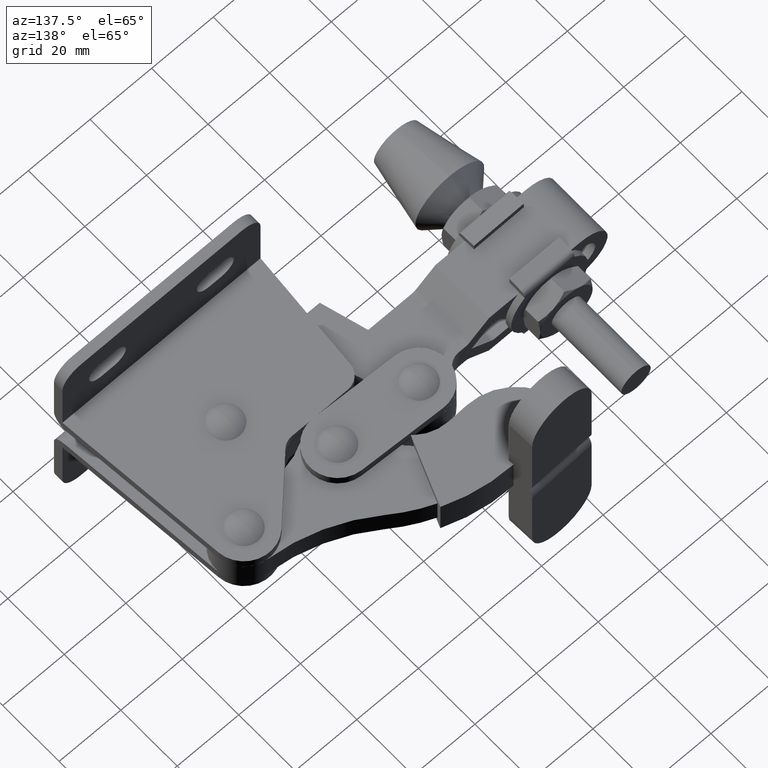
[diagram: clean part render]
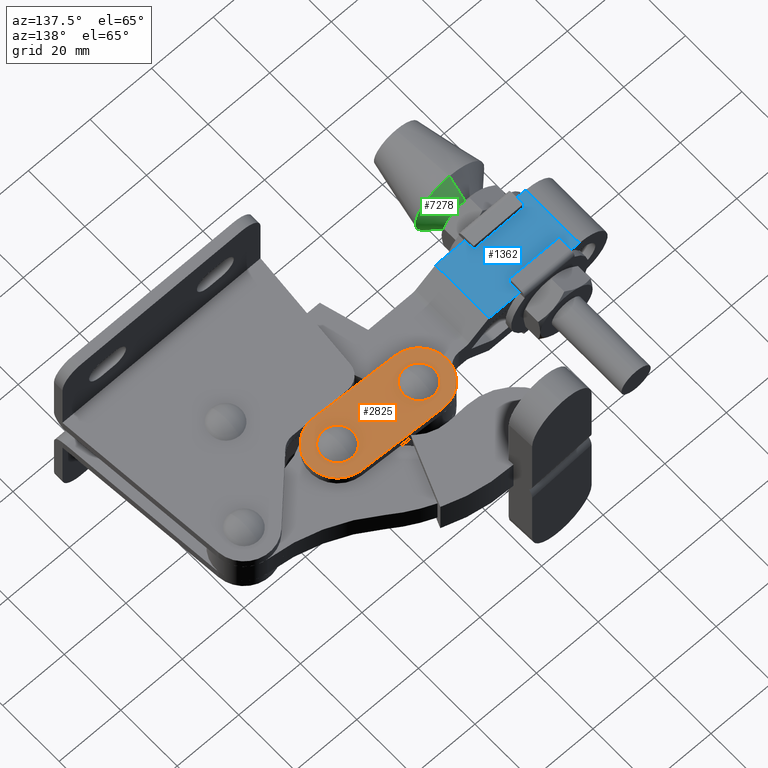
[diagram: same view with three faces highlighted in distinct colors, each labeled with its STEP entity id]
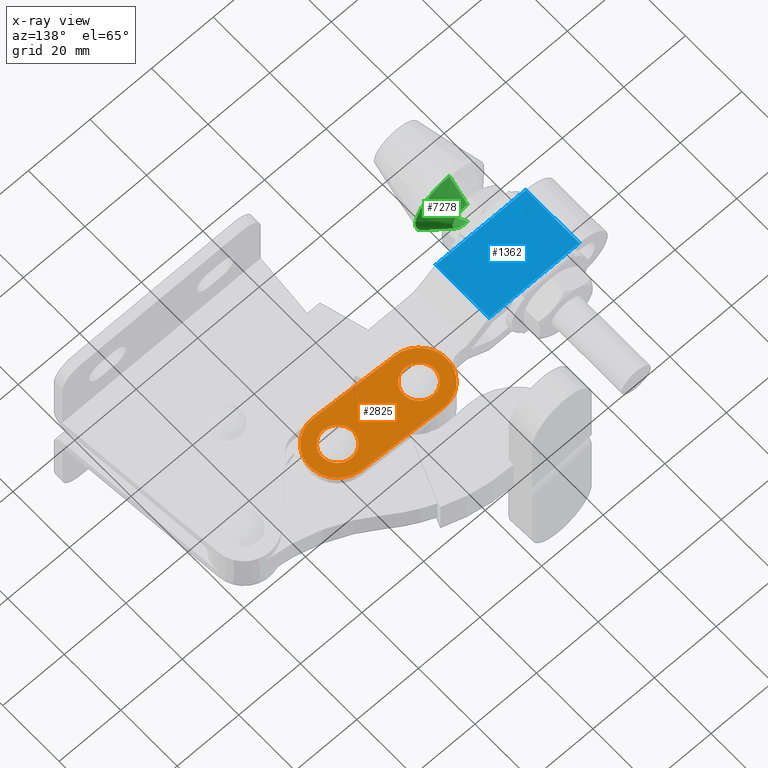
[diagram: x-ray of the same camera — body ghosted, the three highlighted faces saturated]
A machine part, auxiliary view with three faces highlighted in distinct colors.
The next image is the same camera in x-ray (body ghosted, the three faces saturated) — at least one of them is partly hidden behind the body in this view.
Their STEP definitions:

[orange] entity #2825 — the highlighted planar face has unit normal (0, 0, -1).
#169 = DIRECTION ( 'NONE',  ( -1.000000000000000000, 0.0000000000000000000, 0.0000000000000000000 ) ) ;
#311 = EDGE_CURVE ( 'NONE', #1109, #12103, #4352, .T. ) ;
#343 = FACE_BOUND ( 'NONE', #6686, .T. ) ;
#630 = EDGE_CURVE ( 'NONE', #11021, #5490, #1571, .T. ) ;
#844 = CARTESIAN_POINT ( 'NONE',  ( -31.38186293465651400, -1.067088914024708800, 3.000000000000000000 ) ) ;
#1109 = VERTEX_POINT ( 'NONE', #1926 ) ;
#1175 = DIRECTION ( 'NONE',  ( -0.0000000000000000000, -0.0000000000000000000, 1.000000000000000000 ) ) ;
#1364 = DIRECTION ( 'NONE',  ( -0.0000000000000000000, -0.0000000000000000000, 1.000000000000000000 ) ) ;
#1571 = LINE ( 'NONE', #2408, #11194 ) ;
#1696 = CARTESIAN_POINT ( 'NONE',  ( -56.86953488110078300, -6.865852915445034700E-015, 2.999999999999998200 ) ) ;
#1775 = DIRECTION ( 'NONE',  ( -0.9991247332984820600, 0.04183022007158512800, 0.0000000000000000000 ) ) ;
#1926 = CARTESIAN_POINT ( 'NONE',  ( -31.38186293465643900, 3.932911085973869200, 2.999999999999998700 ) ) ;
#2400 = CARTESIAN_POINT ( 'NONE',  ( -64.04783167791941900, 90.87345329217039600, 3.000000000000000000 ) ) ;
#2408 = CARTESIAN_POINT ( 'NONE',  ( -31.00539095401224500, 7.925033685661699000, 3.000000000000000000 ) ) ;
#2507 = VECTOR ( 'NONE', #7595, 1000.000000000000000 ) ;
#2618 = DIRECTION ( 'NONE',  ( -1.000000000000000000, 0.0000000000000000000, 0.0000000000000000000 ) ) ;
#2788 = CARTESIAN_POINT ( 'NONE',  ( -56.86953488110078300, 5.000000000000000900, 2.999999999999998700 ) ) ;
#2825 = ADVANCED_FACE ( 'NONE', ( #9959, #343, #5297 ), #11701, .F. ) ;
#3297 = EDGE_CURVE ( 'NONE', #5490, #5879, #6425, .T. ) ;
#3309 = EDGE_CURVE ( 'NONE', #12103, #1109, #6132, .T. ) ;
#3345 = DIRECTION ( 'NONE',  ( 0.0000000000000000000, 0.0000000000000000000, -1.000000000000000000 ) ) ;
#3598 = EDGE_LOOP ( 'NONE', ( #5985, #3641, #4854, #5308, #11183 ) ) ;
#3641 = ORIENTED_EDGE ( 'NONE', *, *, #630, .T. ) ;
#3857 = AXIS2_PLACEMENT_3D ( 'NONE', #4144, #10656, #5082 ) ;
#3886 = CARTESIAN_POINT ( 'NONE',  ( -56.86953488110086100, 1.430713186811871700E-012, 3.000000000000000000 ) ) ;
#3911 = CARTESIAN_POINT ( 'NONE',  ( -56.86953488110078300, -5.000000000000015100, 2.999999999999998700 ) ) ;
#4144 = CARTESIAN_POINT ( 'NONE',  ( -56.86953488110086100, 1.430713186811871700E-012, 3.000000000000000000 ) ) ;
#4205 = EDGE_LOOP ( 'NONE', ( #5538, #5399 ) ) ;
#4352 = CIRCLE ( 'NONE', #10865, 5.000000000000011500 ) ;
#4381 = EDGE_CURVE ( 'NONE', #5879, #11215, #8246, .T. ) ;
#4535 = CARTESIAN_POINT ( 'NONE',  ( -31.38186293465643900, -6.067088914026145500, 2.999999999999998700 ) ) ;
#4816 = DIRECTION ( 'NONE',  ( -0.9991247332984819500, 0.04183022007158512800, 0.0000000000000000000 ) ) ;
#4854 = ORIENTED_EDGE ( 'NONE', *, *, #3297, .T. ) ;
#4974 = ORIENTED_EDGE ( 'NONE', *, *, #10314, .F. ) ;
#5033 = VERTEX_POINT ( 'NONE', #3911 ) ;
#5060 = ORIENTED_EDGE ( 'NONE', *, *, #10144, .F. ) ;
#5082 = DIRECTION ( 'NONE',  ( -0.9991247332984819500, 0.04183022007158601600, 0.0000000000000000000 ) ) ;
#5297 = FACE_OUTER_BOUND ( 'NONE', #3598, .T. ) ;
#5308 = ORIENTED_EDGE ( 'NONE', *, *, #4381, .T. ) ;
#5399 = ORIENTED_EDGE ( 'NONE', *, *, #3309, .F. ) ;
#5490 = VERTEX_POINT ( 'NONE', #5643 ) ;
#5538 = ORIENTED_EDGE ( 'NONE', *, *, #311, .F. ) ;
#5643 = CARTESIAN_POINT ( 'NONE',  ( -56.49306290045659300, 8.992122599687839100, 3.000000000000000000 ) ) ;
#5743 = DIRECTION ( 'NONE',  ( -0.0000000000000000000, -0.0000000000000000000, 1.000000000000000000 ) ) ;
#5879 = VERTEX_POINT ( 'NONE', #6281 ) ;
#5923 = EDGE_CURVE ( 'NONE', #6416, #11021, #6596, .T. ) ;
#5985 = ORIENTED_EDGE ( 'NONE', *, *, #5923, .T. ) ;
#6132 = CIRCLE ( 'NONE', #7559, 5.000000000000011500 ) ;
#6281 = CARTESIAN_POINT ( 'NONE',  ( -65.86165748078701700, 0.3764719806456890400, 3.000000000000000000 ) ) ;
#6416 = VERTEX_POINT ( 'NONE', #10857 ) ;
#6425 = CIRCLE ( 'NONE', #3857, 8.999999999999815300 ) ;
#6596 = CIRCLE ( 'NONE', #7338, 9.000000000000071100 ) ;
#6686 = EDGE_LOOP ( 'NONE', ( #5060, #4974 ) ) ;
#6742 = CARTESIAN_POINT ( 'NONE',  ( -31.38186293465643900, -1.067088914026138100, 2.999999999999998200 ) ) ;
#6931 = CARTESIAN_POINT ( 'NONE',  ( -31.38186293465643900, -1.067088914026138100, 2.999999999999998200 ) ) ;
#7173 = EDGE_CURVE ( 'NONE', #11215, #6416, #10233, .T. ) ;
#7326 = DIRECTION ( 'NONE',  ( -0.0000000000000000000, -0.0000000000000000000, 1.000000000000000000 ) ) ;
#7338 = AXIS2_PLACEMENT_3D ( 'NONE', #844, #7326, #1775 ) ;
#7559 = AXIS2_PLACEMENT_3D ( 'NONE', #6931, #1364, #7845 ) ;
#7586 = CIRCLE ( 'NONE', #11219, 5.000000000000011500 ) ;
#7595 = DIRECTION ( 'NONE',  ( 0.9991247332984819500, -0.04183022007158512800, 0.0000000000000000000 ) ) ;
#7665 = DIRECTION ( 'NONE',  ( -1.000000000000000000, 0.0000000000000000000, 0.0000000000000000000 ) ) ;
#7845 = DIRECTION ( 'NONE',  ( -1.000000000000000000, 0.0000000000000000000, 0.0000000000000000000 ) ) ;
#7946 = CARTESIAN_POINT ( 'NONE',  ( -31.00539095401224500, 7.925033685661699000, 3.000000000000000000 ) ) ;
#8017 = CIRCLE ( 'NONE', #10350, 5.000000000000011500 ) ;
#8170 = DIRECTION ( 'NONE',  ( -0.0000000000000000000, -0.0000000000000000000, 1.000000000000000000 ) ) ;
#8246 = CIRCLE ( 'NONE', #10466, 8.999999999999815300 ) ;
#9531 = AXIS2_PLACEMENT_3D ( 'NONE', #2400, #3345, #9854 ) ;
#9666 = VERTEX_POINT ( 'NONE', #2788 ) ;
#9854 = DIRECTION ( 'NONE',  ( -0.9991247332984819500, 0.04183022007158512800, 0.0000000000000000000 ) ) ;
#9959 = FACE_BOUND ( 'NONE', #4205, .T. ) ;
#10144 = EDGE_CURVE ( 'NONE', #9666, #5033, #7586, .T. ) ;
#10233 = LINE ( 'NONE', #11333, #2507 ) ;
#10314 = EDGE_CURVE ( 'NONE', #5033, #9666, #8017, .T. ) ;
#10350 = AXIS2_PLACEMENT_3D ( 'NONE', #11337, #5743, #169 ) ;
#10393 = DIRECTION ( 'NONE',  ( -0.0000000000000000000, -0.0000000000000000000, 1.000000000000000000 ) ) ;
#10466 = AXIS2_PLACEMENT_3D ( 'NONE', #3886, #10393, #4816 ) ;
#10599 = DIRECTION ( 'NONE',  ( -0.9991247332984819500, 0.04183022007158512800, 0.0000000000000000000 ) ) ;
#10656 = DIRECTION ( 'NONE',  ( -0.0000000000000000000, -0.0000000000000000000, 1.000000000000000000 ) ) ;
#10857 = CARTESIAN_POINT ( 'NONE',  ( -31.75833491530078600, -10.05921151371111800, 3.000000000000000000 ) ) ;
#10865 = AXIS2_PLACEMENT_3D ( 'NONE', #6742, #1175, #7665 ) ;
#11021 = VERTEX_POINT ( 'NONE', #7946 ) ;
#11183 = ORIENTED_EDGE ( 'NONE', *, *, #7173, .T. ) ;
#11194 = VECTOR ( 'NONE', #10599, 1000.000000000000000 ) ;
#11215 = VERTEX_POINT ( 'NONE', #11991 ) ;
#11219 = AXIS2_PLACEMENT_3D ( 'NONE', #1696, #8170, #2618 ) ;
#11333 = CARTESIAN_POINT ( 'NONE',  ( -57.24600686174513700, -8.992122599684977400, 3.000000000000000000 ) ) ;
#11337 = CARTESIAN_POINT ( 'NONE',  ( -56.86953488110078300, -6.865852915445034700E-015, 2.999999999999998200 ) ) ;
#11701 = PLANE ( 'NONE',  #9531 ) ;
#11991 = CARTESIAN_POINT ( 'NONE',  ( -57.24600686174513700, -8.992122599684977400, 3.000000000000000000 ) ) ;
#12103 = VERTEX_POINT ( 'NONE', #4535 ) ;

[blue] entity #1362 — the highlighted planar face has unit normal (0, 0, 1).
#229 = LINE ( 'NONE', #3174, #9561 ) ;
#525 = CARTESIAN_POINT ( 'NONE',  ( -118.7560132984885400, -19.36000000000024500, 5.149999999999973700 ) ) ;
#681 = ORIENTED_EDGE ( 'NONE', *, *, #7944, .F. ) ;
#1362 = ADVANCED_FACE ( 'NONE', ( #9990 ), #10700, .T. ) ;
#1463 = DIRECTION ( 'NONE',  ( -1.000000000000000000, -0.0000000000000000000, -0.0000000000000000000 ) ) ;
#1657 = ORIENTED_EDGE ( 'NONE', *, *, #10817, .F. ) ;
#2041 = VECTOR ( 'NONE', #8295, 1000.000000000000000 ) ;
#2133 = CARTESIAN_POINT ( 'NONE',  ( -118.7250726582063300, -0.3599999999997944800, 5.149999999999973700 ) ) ;
#2136 = VERTEX_POINT ( 'NONE', #4922 ) ;
#2299 = ORIENTED_EDGE ( 'NONE', *, *, #5154, .T. ) ;
#2591 = DIRECTION ( 'NONE',  ( 0.0000000000000000000, 0.0000000000000000000, 1.000000000000000000 ) ) ;
#2806 = VECTOR ( 'NONE', #1463, 1000.000000000000000 ) ;
#2813 = EDGE_CURVE ( 'NONE', #2136, #9504, #8031, .T. ) ;
#2885 = CARTESIAN_POINT ( 'NONE',  ( -79.93000000000027700, -0.3599999999997944800, 5.149999999999973700 ) ) ;
#3062 = DIRECTION ( 'NONE',  ( 1.000000000000000000, 0.0000000000000000000, 0.0000000000000000000 ) ) ;
#3174 = CARTESIAN_POINT ( 'NONE',  ( -109.2849326175768000, -19.36000000000024500, 5.149999999999973700 ) ) ;
#3374 = VECTOR ( 'NONE', #3062, 1000.000000000000000 ) ;
#3666 = LINE ( 'NONE', #2133, #3374 ) ;
#4922 = CARTESIAN_POINT ( 'NONE',  ( -79.93000000000019200, -19.36000000000024500, 5.149999999999973700 ) ) ;
#5154 = EDGE_CURVE ( 'NONE', #9905, #9504, #229, .T. ) ;
#6236 = ORIENTED_EDGE ( 'NONE', *, *, #2813, .F. ) ;
#6810 = DIRECTION ( 'NONE',  ( -0.0000000000000000000, -1.000000000000000000, -0.0000000000000000000 ) ) ;
#6977 = LINE ( 'NONE', #10167, #2041 ) ;
#7358 = EDGE_LOOP ( 'NONE', ( #6236, #681, #1657, #2299 ) ) ;
#7944 = EDGE_CURVE ( 'NONE', #8747, #2136, #6977, .T. ) ;
#8031 = LINE ( 'NONE', #525, #2806 ) ;
#8295 = DIRECTION ( 'NONE',  ( -0.0000000000000000000, -1.000000000000000000, -0.0000000000000000000 ) ) ;
#8326 = AXIS2_PLACEMENT_3D ( 'NONE', #9141, #2591, #9013 ) ;
#8747 = VERTEX_POINT ( 'NONE', #2885 ) ;
#8802 = CARTESIAN_POINT ( 'NONE',  ( -109.2849326175768000, -0.3599999999997910400, 5.149999999999973700 ) ) ;
#8985 = CARTESIAN_POINT ( 'NONE',  ( -109.2849326175768000, -19.36000000000024500, 5.149999999999973700 ) ) ;
#9013 = DIRECTION ( 'NONE',  ( 1.000000000000000000, 0.0000000000000000000, 0.0000000000000000000 ) ) ;
#9141 = CARTESIAN_POINT ( 'NONE',  ( -109.2849326175768000, -19.36000000000024500, 5.149999999999973700 ) ) ;
#9504 = VERTEX_POINT ( 'NONE', #8985 ) ;
#9561 = VECTOR ( 'NONE', #6810, 1000.000000000000000 ) ;
#9905 = VERTEX_POINT ( 'NONE', #8802 ) ;
#9990 = FACE_OUTER_BOUND ( 'NONE', #7358, .T. ) ;
#10167 = CARTESIAN_POINT ( 'NONE',  ( -79.93000000000013500, -19.36000000000024500, 5.149999999999973700 ) ) ;
#10700 = PLANE ( 'NONE',  #8326 ) ;
#10817 = EDGE_CURVE ( 'NONE', #9905, #8747, #3666, .T. ) ;

[green] entity #7278 — the highlighted conical surface has half-angle 44.723 deg.
#108 = EDGE_CURVE ( 'NONE', #1604, #5689, #9440, .T. ) ;
#290 = DIRECTION ( 'NONE',  ( 1.224606353822377000E-016, -1.000000000000000000, 3.963202713684358100E-033 ) ) ;
#448 = DIRECTION ( 'NONE',  ( -1.000000000000000000, 0.0000000000000000000, 0.0000000000000000000 ) ) ;
#1604 = VERTEX_POINT ( 'NONE', #5938 ) ;
#1763 = DIRECTION ( 'NONE',  ( 0.007955792333100647500, -0.7105144651125617800, 0.7036376199679511600 ) ) ;
#2743 = EDGE_CURVE ( 'NONE', #11786, #1604, #3995, .T. ) ;
#2850 = ORIENTED_EDGE ( 'NONE', *, *, #2743, .T. ) ;
#3073 = CARTESIAN_POINT ( 'NONE',  ( -97.73519034659720700, -33.70000000000003100, -3.999999999999998200 ) ) ;
#3414 = EDGE_CURVE ( 'NONE', #3844, #5689, #4404, .T. ) ;
#3844 = VERTEX_POINT ( 'NONE', #6872 ) ;
#3995 = CIRCLE ( 'NONE', #6402, 4.920961538461831700 ) ;
#4214 = VECTOR ( 'NONE', #1763, 1000.000000000000000 ) ;
#4404 = CIRCLE ( 'NONE', #4869, 11.19999999999999900 ) ;
#4869 = AXIS2_PLACEMENT_3D ( 'NONE', #10907, #5315, #11845 ) ;
#5075 = CARTESIAN_POINT ( 'NONE',  ( -97.79082643642398400, -27.36000000000031200, -8.920647019298311200 ) ) ;
#5315 = DIRECTION ( 'NONE',  ( 1.224606353822377000E-016, -1.000000000000000000, 3.963202713684358100E-033 ) ) ;
#5419 = CONICAL_SURFACE ( 'NONE', #10670, 11.19999999999999900, 0.7805672831034714500 ) ;
#5462 = CARTESIAN_POINT ( 'NONE',  ( -97.60856383241100800, -33.70000000000003100, 7.199284161316073800 ) ) ;
#5597 = EDGE_CURVE ( 'NONE', #11786, #3844, #5605, .T. ) ;
#5605 = LINE ( 'NONE', #6728, #10273 ) ;
#5689 = VERTEX_POINT ( 'NONE', #5916 ) ;
#5916 = CARTESIAN_POINT ( 'NONE',  ( -97.60856383241102200, -33.70000000000003100, 7.199284161316075600 ) ) ;
#5938 = CARTESIAN_POINT ( 'NONE',  ( -97.67955425677044400, -27.36000000000031200, 0.9206470192983148300 ) ) ;
#6009 = DIRECTION ( 'NONE',  ( 2.449212707644754000E-016, -1.000000000000000000, 3.963202713682911600E-033 ) ) ;
#6402 = AXIS2_PLACEMENT_3D ( 'NONE', #11623, #6009, #448 ) ;
#6565 = FACE_OUTER_BOUND ( 'NONE', #11236, .T. ) ;
#6728 = CARTESIAN_POINT ( 'NONE',  ( -97.86181686078340600, -33.70000000000003100, -15.19928416131607000 ) ) ;
#6872 = CARTESIAN_POINT ( 'NONE',  ( -97.86181686078339200, -33.70000000000003100, -15.19928416131607200 ) ) ;
#7278 = ADVANCED_FACE ( 'NONE', ( #6565 ), #5419, .T. ) ;
#7787 = ORIENTED_EDGE ( 'NONE', *, *, #5597, .F. ) ;
#8129 = ORIENTED_EDGE ( 'NONE', *, *, #3414, .F. ) ;
#9440 = LINE ( 'NONE', #5462, #4214 ) ;
#10273 = VECTOR ( 'NONE', #10453, 1000.000000000000000 ) ;
#10453 = DIRECTION ( 'NONE',  ( -0.007955792333100387300, -0.7105144651125617800, -0.7036376199679511600 ) ) ;
#10561 = DIRECTION ( 'NONE',  ( -0.01130593876662484800, 0.0000000000000000000, -0.9999360858317921700 ) ) ;
#10670 = AXIS2_PLACEMENT_3D ( 'NONE', #3073, #290, #10561 ) ;
#10802 = ORIENTED_EDGE ( 'NONE', *, *, #108, .T. ) ;
#10907 = CARTESIAN_POINT ( 'NONE',  ( -97.73519034659720700, -33.70000000000003100, -3.999999999999998200 ) ) ;
#11236 = EDGE_LOOP ( 'NONE', ( #2850, #10802, #8129, #7787 ) ) ;
#11623 = CARTESIAN_POINT ( 'NONE',  ( -97.73519034659720700, -27.36000000000031200, -3.999999999999998200 ) ) ;
#11786 = VERTEX_POINT ( 'NONE', #5075 ) ;
#11845 = DIRECTION ( 'NONE',  ( -0.01130593876662484800, 0.0000000000000000000, -0.9999360858317921700 ) ) ;